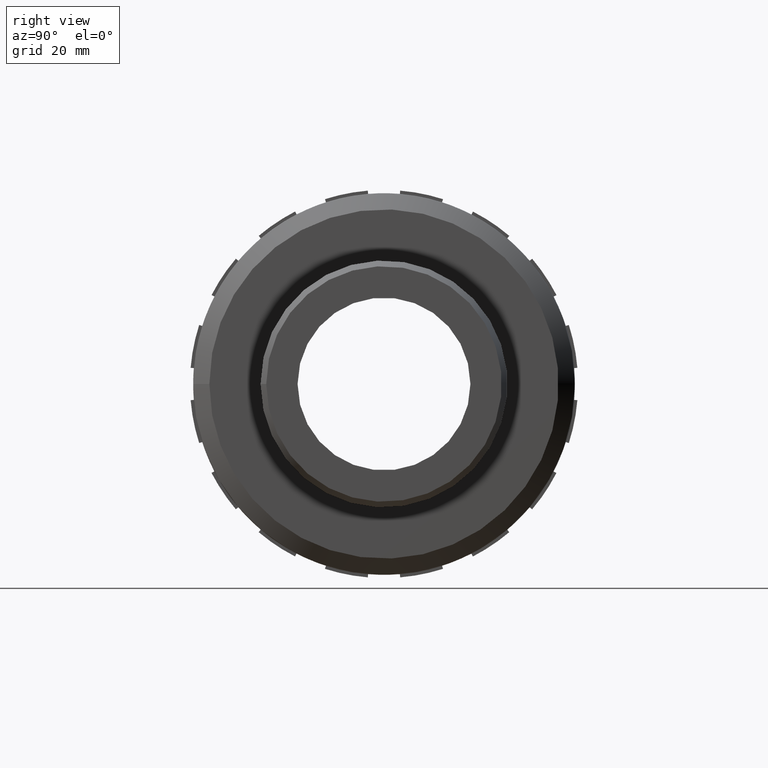
[diagram: clean part render]
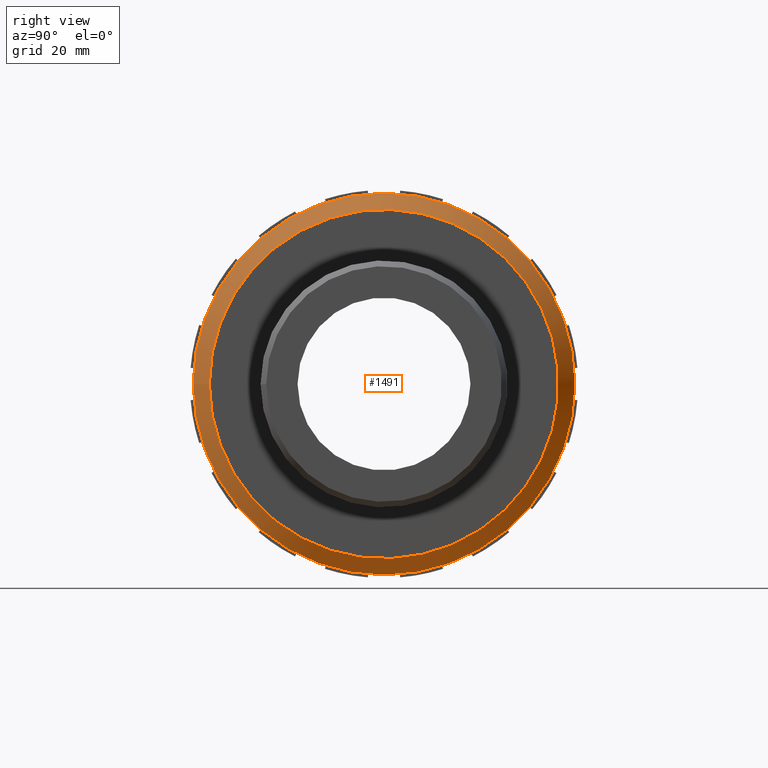
[diagram: same view with one face highlighted and labeled with its STEP entity id]
A machine part, right view. The second image highlights one B-rep face of the part: STEP entity #1491.
In plain terms, the highlighted conical surface has half-angle 45 deg.
Its self-contained STEP definition (entity closure, byte-faithful):
#15=CONICAL_SURFACE('',#1642,44.39544,45.);
#43=FACE_BOUND('',#296,.T.);
#127=CIRCLE('',#1643,42.43104);
#128=CIRCLE('',#1644,46.35984);
#210=FACE_OUTER_BOUND('',#295,.T.);
#295=EDGE_LOOP('',(#1268));
#296=EDGE_LOOP('',(#1269));
#718=VERTEX_POINT('',#2532);
#719=VERTEX_POINT('',#2534);
#929=EDGE_CURVE('',#718,#718,#127,.T.);
#930=EDGE_CURVE('',#719,#719,#128,.T.);
#1268=ORIENTED_EDGE('',*,*,#929,.T.);
#1269=ORIENTED_EDGE('',*,*,#930,.T.);
#1491=ADVANCED_FACE('',(#210,#43),#15,.T.);
#1642=AXIS2_PLACEMENT_3D('',#2531,#2069,#2070);
#1643=AXIS2_PLACEMENT_3D('',#2533,#2071,#2072);
#1644=AXIS2_PLACEMENT_3D('',#2535,#2073,#2074);
#2069=DIRECTION('center_axis',(-1.,0.,0.));
#2070=DIRECTION('ref_axis',(0.,1.,0.));
#2071=DIRECTION('center_axis',(-1.,0.,0.));
#2072=DIRECTION('ref_axis',(0.,1.,0.));
#2073=DIRECTION('center_axis',(1.,0.,0.));
#2074=DIRECTION('ref_axis',(0.,1.,0.));
#2531=CARTESIAN_POINT('Origin',(33.4356,0.,0.));
#2532=CARTESIAN_POINT('',(35.4,-42.43104,5.19630373204933E-15));
#2533=CARTESIAN_POINT('Origin',(35.4,0.,0.));
#2534=CARTESIAN_POINT('',(31.4712,-46.35984,-5.67744296649834E-15));
#2535=CARTESIAN_POINT('Origin',(31.4712,0.,0.));